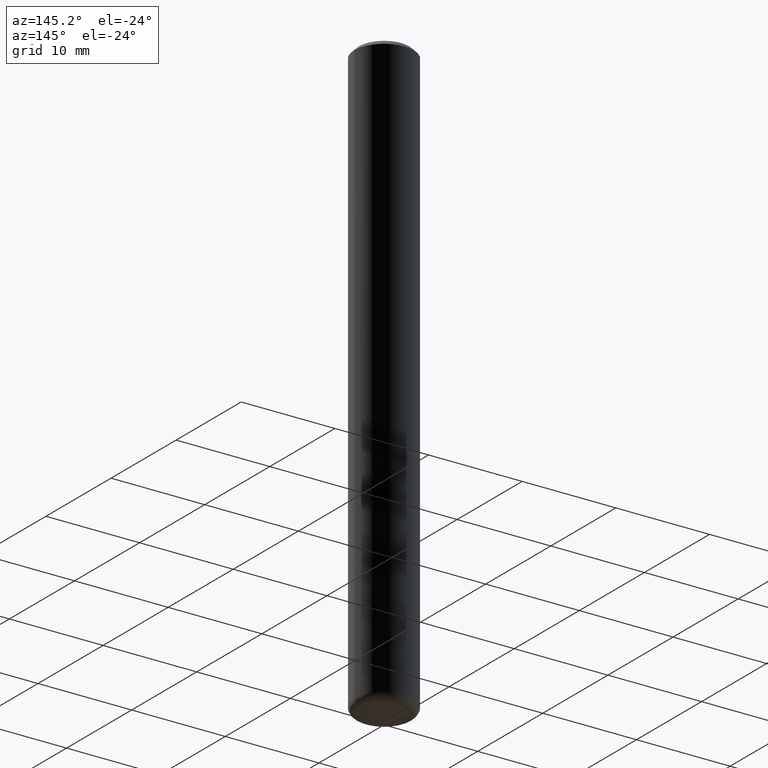
[diagram: clean part render]
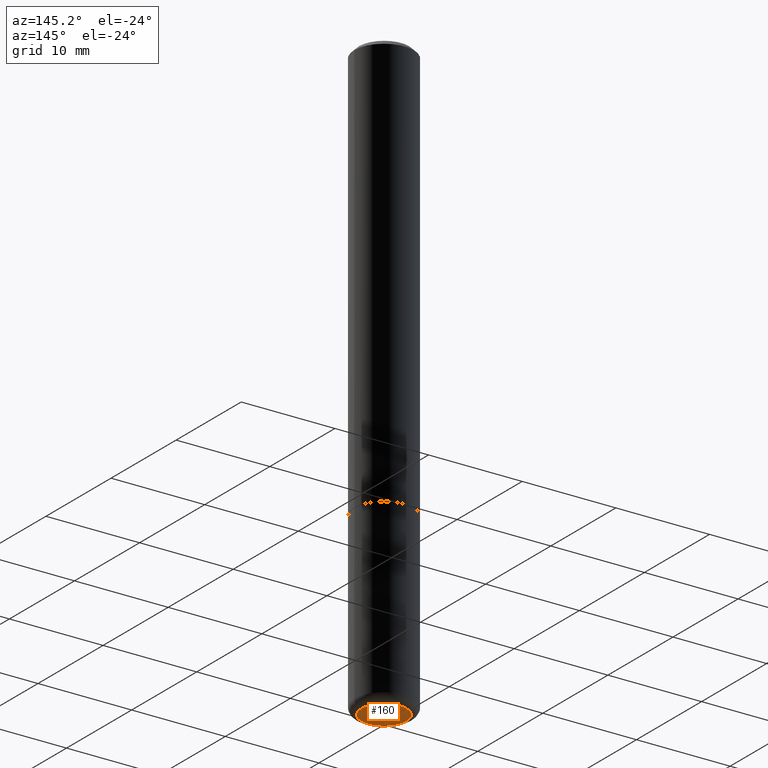
[diagram: same view with one face highlighted and labeled with its STEP entity id]
A machine part, auxiliary view. The second image highlights one B-rep face of the part: STEP entity #160.
In plain terms, the highlighted planar face has unit normal (0, -0, -1).
Its self-contained STEP definition (entity closure, byte-faithful):
#6 = DIRECTION ( 'NONE',  ( -2.445468806185136597E-29, 3.491481338843145583E-15, 1.000000000000000000 ) ) ;
#13 = DIRECTION ( 'NONE',  ( 2.438088387897960049E-29, -3.491481338843145188E-15, -1.000000000000000000 ) ) ;
#42 = DIRECTION ( 'NONE',  ( -2.445468806185136597E-29, 3.491481338843145583E-15, 1.000000000000000000 ) ) ;
#47 = VERTEX_POINT ( 'NONE', #202 ) ;
#51 = ORIENTED_EDGE ( 'NONE', *, *, #133, .F. ) ;
#56 = EDGE_LOOP ( 'NONE', ( #84, #51 ) ) ;
#84 = ORIENTED_EDGE ( 'NONE', *, *, #241, .F. ) ;
#99 = DIRECTION ( 'NONE',  ( 1.000000000000000000, -6.982962677686273021E-15, 0.000000000000000000 ) ) ;
#133 = EDGE_CURVE ( 'NONE', #362, #47, #238, .T. ) ;
#142 = PLANE ( 'NONE',  #224 ) ;
#160 = ADVANCED_FACE ( 'NONE', ( #167 ), #142, .T. ) ;
#167 = FACE_OUTER_BOUND ( 'NONE', #56, .T. ) ;
#202 = CARTESIAN_POINT ( 'NONE',  ( 0.09499999999999998723, -9.392084801488059965E-15, -2.500000000000000000 ) ) ;
#206 = CARTESIAN_POINT ( 'NONE',  ( 6.113672015462842613E-29, -8.728703347107864943E-15, -2.500000000000000000 ) ) ;
#224 = AXIS2_PLACEMENT_3D ( 'NONE', #309, #13, #399 ) ;
#238 = CIRCLE ( 'NONE', #374, 0.09499999999999998723 ) ;
#241 = EDGE_CURVE ( 'NONE', #47, #362, #249, .T. ) ;
#249 = CIRCLE ( 'NONE', #352, 0.09499999999999998723 ) ;
#297 = CARTESIAN_POINT ( 'NONE',  ( 6.113672015462842613E-29, -8.728703347107864943E-15, -2.500000000000000000 ) ) ;
#309 = CARTESIAN_POINT ( 'NONE',  ( 6.113672015462842613E-29, -8.728703347107864943E-15, -2.500000000000000000 ) ) ;
#341 = DIRECTION ( 'NONE',  ( 1.000000000000000000, -6.982962677686273021E-15, 0.000000000000000000 ) ) ;
#352 = AXIS2_PLACEMENT_3D ( 'NONE', #297, #6, #99 ) ;
#362 = VERTEX_POINT ( 'NONE', #410 ) ;
#374 = AXIS2_PLACEMENT_3D ( 'NONE', #206, #42, #341 ) ;
#399 = DIRECTION ( 'NONE',  ( -1.000000000000000000, 6.982962677686265922E-15, -4.876176775795935793E-29 ) ) ;
#410 = CARTESIAN_POINT ( 'NONE',  ( -0.09499999999999998723, -7.894734117689107359E-15, -2.500000000000000000 ) ) ;